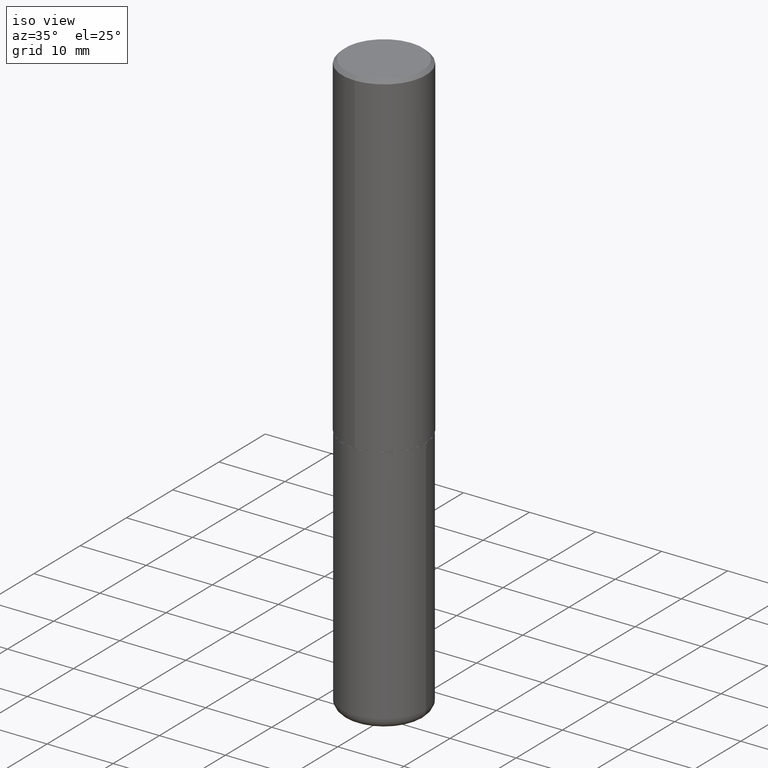
[diagram: clean part render]
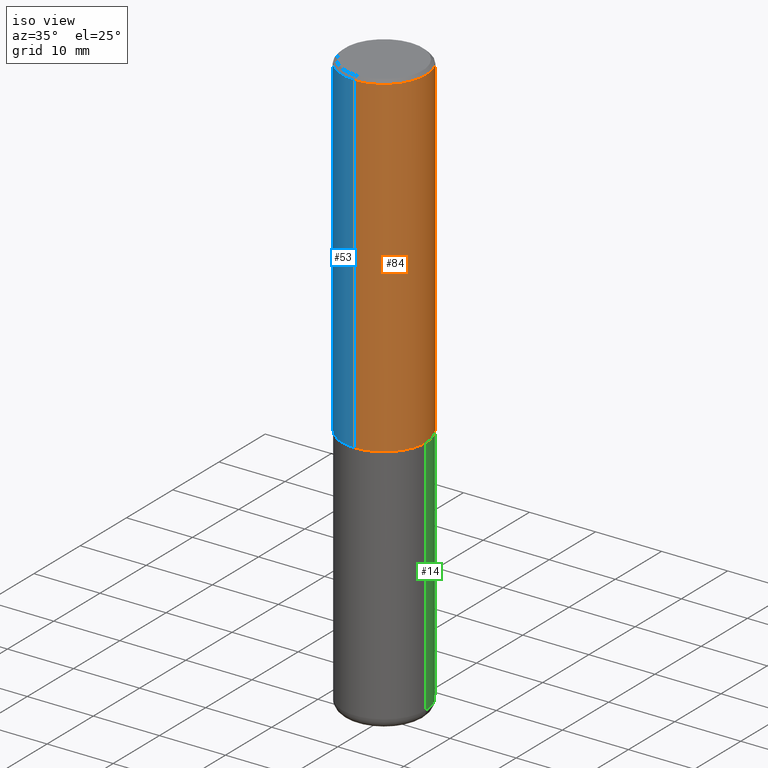
[diagram: same view with three faces highlighted in distinct colors, each labeled with its STEP entity id]
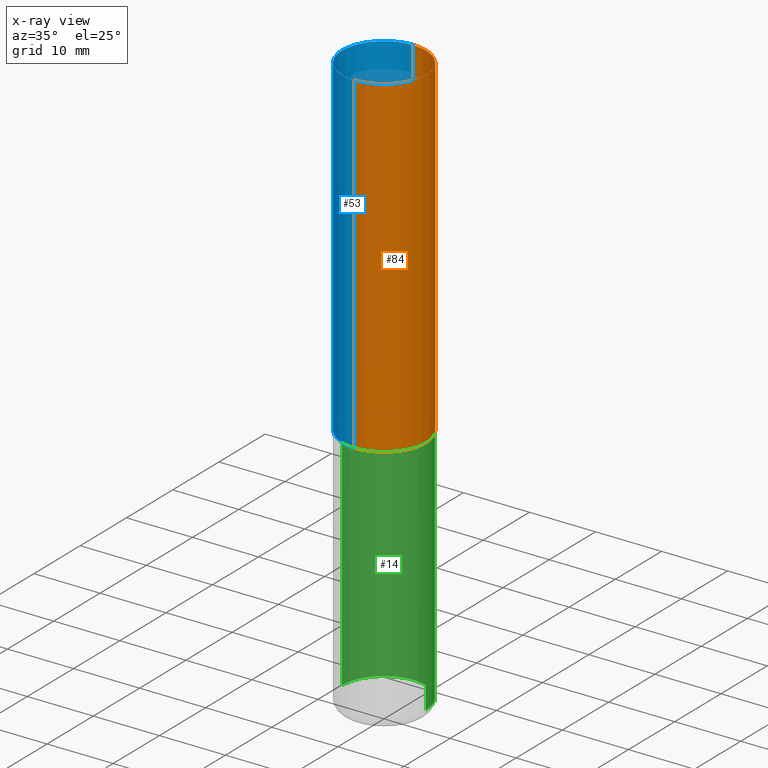
[diagram: x-ray of the same camera — body ghosted, the three highlighted faces saturated]
A machine part, iso view with three faces highlighted in distinct colors.
The next image is the same camera in x-ray (body ghosted, the three faces saturated) — at least one of them is partly hidden behind the body in this view.
Their STEP definitions:

[orange] entity #84 — the highlighted cylindrical surface (partial cylindrical patch) has radius 6.35 mm, axis along (-0, 0, 1).
#7 = VERTEX_POINT ( 'NONE', #170 ) ;
#8 = DIRECTION ( 'NONE',  ( -2.444078991372175563E-29, 3.493471632758652550E-15, 1.000000000000000000 ) ) ;
#12 = AXIS2_PLACEMENT_3D ( 'NONE', #366, #283, #413 ) ;
#26 = DIRECTION ( 'NONE',  ( -6.982962677686266711E-15, -1.000000000000000000, 3.493471632758652550E-15 ) ) ;
#32 = EDGE_CURVE ( 'NONE', #399, #205, #100, .T. ) ;
#73 = CYLINDRICAL_SURFACE ( 'NONE', #296, 0.2500000000000001110 ) ;
#84 = ADVANCED_FACE ( 'NONE', ( #362 ), #73, .T. ) ;
#100 = CIRCLE ( 'NONE', #143, 0.2500000000000000555 ) ;
#106 = ORIENTED_EDGE ( 'NONE', *, *, #249, .F. ) ;
#121 = LINE ( 'NONE', #384, #285 ) ;
#129 = ORIENTED_EDGE ( 'NONE', *, *, #32, .F. ) ;
#137 = DIRECTION ( 'NONE',  ( -2.444078991372175563E-29, 3.493471632758652550E-15, 1.000000000000000000 ) ) ;
#143 = AXIS2_PLACEMENT_3D ( 'NONE', #370, #8, #340 ) ;
#150 = LINE ( 'NONE', #278, #182 ) ;
#170 = CARTESIAN_POINT ( 'NONE',  ( 1.776356839400276103E-15, 0.2499999999999932832, -1.999000000000000776 ) ) ;
#182 = VECTOR ( 'NONE', #409, 39.37007874015748143 ) ;
#196 = ORIENTED_EDGE ( 'NONE', *, *, #221, .T. ) ;
#205 = VERTEX_POINT ( 'NONE', #344 ) ;
#221 = EDGE_CURVE ( 'NONE', #7, #205, #121, .T. ) ;
#249 = EDGE_CURVE ( 'NONE', #334, #399, #150, .T. ) ;
#278 = CARTESIAN_POINT ( 'NONE',  ( -1.745740669421567467E-15, -0.2500000000000001110, 8.733679081896635319E-16 ) ) ;
#283 = DIRECTION ( 'NONE',  ( -2.444078991372175563E-29, 3.493471632758652550E-15, 1.000000000000000000 ) ) ;
#285 = VECTOR ( 'NONE', #379, 39.37007874015748143 ) ;
#296 = AXIS2_PLACEMENT_3D ( 'NONE', #333, #137, #26 ) ;
#305 = CIRCLE ( 'NONE', #12, 0.2500000000000002776 ) ;
#333 = CARTESIAN_POINT ( 'NONE',  ( 0.000000000000000000, 0.000000000000000000, 0.000000000000000000 ) ) ;
#334 = VERTEX_POINT ( 'NONE', #376 ) ;
#339 = EDGE_LOOP ( 'NONE', ( #400, #196, #129, #106 ) ) ;
#340 = DIRECTION ( 'NONE',  ( -6.982962677686265133E-15, -1.000000000000000000, 3.500180241882336472E-15 ) ) ;
#344 = CARTESIAN_POINT ( 'NONE',  ( 1.745740669421567269E-15, 0.2499999999999999722, -0.02000000000000096492 ) ) ;
#362 = FACE_OUTER_BOUND ( 'NONE', #339, .T. ) ;
#366 = CARTESIAN_POINT ( 'NONE',  ( 4.885713903752978284E-29, -6.983449793884546288E-15, -1.998999999999999888 ) ) ;
#370 = CARTESIAN_POINT ( 'NONE',  ( 4.888157982744373443E-31, -6.986943265517335816E-17, -0.02000000000000009062 ) ) ;
#376 = CARTESIAN_POINT ( 'NONE',  ( -1.745740669421519543E-15, -0.2500000000000072720, -1.998999999999999000 ) ) ;
#379 = DIRECTION ( 'NONE',  ( -2.444078991372175563E-29, 3.493471632758652550E-15, 1.000000000000000000 ) ) ;
#384 = CARTESIAN_POINT ( 'NONE',  ( 1.776356839400251254E-15, 0.2500000000000001110, -8.733679081896635319E-16 ) ) ;
#397 = CARTESIAN_POINT ( 'NONE',  ( -1.715124499442882496E-15, -0.2500000000000001110, -0.01999999999999921632 ) ) ;
#399 = VERTEX_POINT ( 'NONE', #397 ) ;
#400 = ORIENTED_EDGE ( 'NONE', *, *, #405, .T. ) ;
#405 = EDGE_CURVE ( 'NONE', #334, #7, #305, .T. ) ;
#409 = DIRECTION ( 'NONE',  ( -2.444078991372175563E-29, 3.493471632758652550E-15, 1.000000000000000000 ) ) ;
#413 = DIRECTION ( 'NONE',  ( -6.982962677686265922E-15, -1.000000000000000000, 3.278217592397112312E-15 ) ) ;

[blue] entity #53 — the highlighted cylindrical surface (partial cylindrical patch) has radius 6.35 mm, axis along (-0, 0, 1).
#5 = AXIS2_PLACEMENT_3D ( 'NONE', #301, #403, #48 ) ;
#7 = VERTEX_POINT ( 'NONE', #170 ) ;
#16 = ORIENTED_EDGE ( 'NONE', *, *, #249, .T. ) ;
#39 = AXIS2_PLACEMENT_3D ( 'NONE', #383, #251, #287 ) ;
#48 = DIRECTION ( 'NONE',  ( -6.982962677686266711E-15, -1.000000000000000000, 3.493471632758652550E-15 ) ) ;
#53 = ADVANCED_FACE ( 'NONE', ( #336 ), #209, .T. ) ;
#120 = DIRECTION ( 'NONE',  ( -2.444078991372175563E-29, 3.493471632758652550E-15, 1.000000000000000000 ) ) ;
#121 = LINE ( 'NONE', #384, #285 ) ;
#122 = EDGE_CURVE ( 'NONE', #205, #399, #222, .T. ) ;
#150 = LINE ( 'NONE', #278, #182 ) ;
#164 = ORIENTED_EDGE ( 'NONE', *, *, #221, .F. ) ;
#169 = CIRCLE ( 'NONE', #219, 0.2500000000000002776 ) ;
#170 = CARTESIAN_POINT ( 'NONE',  ( 1.776356839400276103E-15, 0.2499999999999932832, -1.999000000000000776 ) ) ;
#182 = VECTOR ( 'NONE', #409, 39.37007874015748143 ) ;
#190 = EDGE_LOOP ( 'NONE', ( #164, #292, #16, #235 ) ) ;
#205 = VERTEX_POINT ( 'NONE', #344 ) ;
#209 = CYLINDRICAL_SURFACE ( 'NONE', #5, 0.2500000000000001110 ) ;
#219 = AXIS2_PLACEMENT_3D ( 'NONE', #314, #120, #244 ) ;
#221 = EDGE_CURVE ( 'NONE', #7, #205, #121, .T. ) ;
#222 = CIRCLE ( 'NONE', #39, 0.2500000000000000555 ) ;
#235 = ORIENTED_EDGE ( 'NONE', *, *, #122, .F. ) ;
#244 = DIRECTION ( 'NONE',  ( -6.982962677686265922E-15, -1.000000000000000000, 3.278217592397112312E-15 ) ) ;
#249 = EDGE_CURVE ( 'NONE', #334, #399, #150, .T. ) ;
#251 = DIRECTION ( 'NONE',  ( -2.444078991372175563E-29, 3.493471632758652550E-15, 1.000000000000000000 ) ) ;
#278 = CARTESIAN_POINT ( 'NONE',  ( -1.745740669421567467E-15, -0.2500000000000001110, 8.733679081896635319E-16 ) ) ;
#285 = VECTOR ( 'NONE', #379, 39.37007874015748143 ) ;
#287 = DIRECTION ( 'NONE',  ( -6.982962677686265133E-15, -1.000000000000000000, 3.500180241882336472E-15 ) ) ;
#292 = ORIENTED_EDGE ( 'NONE', *, *, #358, .T. ) ;
#301 = CARTESIAN_POINT ( 'NONE',  ( 0.000000000000000000, 0.000000000000000000, 0.000000000000000000 ) ) ;
#314 = CARTESIAN_POINT ( 'NONE',  ( 4.885713903752978284E-29, -6.983449793884546288E-15, -1.998999999999999888 ) ) ;
#334 = VERTEX_POINT ( 'NONE', #376 ) ;
#336 = FACE_OUTER_BOUND ( 'NONE', #190, .T. ) ;
#344 = CARTESIAN_POINT ( 'NONE',  ( 1.745740669421567269E-15, 0.2499999999999999722, -0.02000000000000096492 ) ) ;
#358 = EDGE_CURVE ( 'NONE', #7, #334, #169, .T. ) ;
#376 = CARTESIAN_POINT ( 'NONE',  ( -1.745740669421519543E-15, -0.2500000000000072720, -1.998999999999999000 ) ) ;
#379 = DIRECTION ( 'NONE',  ( -2.444078991372175563E-29, 3.493471632758652550E-15, 1.000000000000000000 ) ) ;
#383 = CARTESIAN_POINT ( 'NONE',  ( 4.888157982744373443E-31, -6.986943265517335816E-17, -0.02000000000000009062 ) ) ;
#384 = CARTESIAN_POINT ( 'NONE',  ( 1.776356839400251254E-15, 0.2500000000000001110, -8.733679081896635319E-16 ) ) ;
#397 = CARTESIAN_POINT ( 'NONE',  ( -1.715124499442882496E-15, -0.2500000000000001110, -0.01999999999999921632 ) ) ;
#399 = VERTEX_POINT ( 'NONE', #397 ) ;
#403 = DIRECTION ( 'NONE',  ( -2.444078991372175563E-29, 3.493471632758652550E-15, 1.000000000000000000 ) ) ;
#409 = DIRECTION ( 'NONE',  ( -2.444078991372175563E-29, 3.493471632758652550E-15, 1.000000000000000000 ) ) ;

[green] entity #14 — the highlighted cylindrical surface (partial cylindrical patch) has radius 6.35 mm, axis along (-0, 0, 1).
#4 = CARTESIAN_POINT ( 'NONE',  ( -0.2499999999999999722, -1.023433896622016898E-14, -3.439999999999999947 ) ) ;
#11 = ORIENTED_EDGE ( 'NONE', *, *, #396, .T. ) ;
#14 = ADVANCED_FACE ( 'NONE', ( #398 ), #368, .T. ) ;
#24 = DIRECTION ( 'NONE',  ( 1.000000000000000000, -6.982962677686266711E-15, 4.876176775795935793E-29 ) ) ;
#28 = CIRCLE ( 'NONE', #323, 0.2500000000000000000 ) ;
#35 = DIRECTION ( 'NONE',  ( -2.445468806185136597E-29, 3.491481338843145583E-15, 1.000000000000000000 ) ) ;
#47 = CARTESIAN_POINT ( 'NONE',  ( 8.412412693276869938E-29, -1.201069580562042103E-14, -3.439999999999999947 ) ) ;
#52 = CARTESIAN_POINT ( 'NONE',  ( 0.2499999999999999722, -1.375643647504198770E-14, -3.439999999999999947 ) ) ;
#64 = CARTESIAN_POINT ( 'NONE',  ( -0.2500000000000000000, -7.720472402253106025E-15, -2.000000000000000000 ) ) ;
#79 = CARTESIAN_POINT ( 'NONE',  ( 0.000000000000000000, 0.000000000000000000, 0.000000000000000000 ) ) ;
#87 = CIRCLE ( 'NONE', #144, 0.2500000000000000000 ) ;
#89 = ORIENTED_EDGE ( 'NONE', *, *, #309, .T. ) ;
#97 = LINE ( 'NONE', #256, #343 ) ;
#98 = CARTESIAN_POINT ( 'NONE',  ( 4.890937612370273194E-29, -6.982962677686291165E-15, -2.000000000000000000 ) ) ;
#130 = VECTOR ( 'NONE', #302, 39.37007874015748143 ) ;
#141 = CARTESIAN_POINT ( 'NONE',  ( -0.2500000000000000000, 1.776356839400250465E-15, -1.229733772563726445E-29 ) ) ;
#144 = AXIS2_PLACEMENT_3D ( 'NONE', #47, #406, #375 ) ;
#163 = DIRECTION ( 'NONE',  ( 1.000000000000000000, -6.982962677686266711E-15, 0.000000000000000000 ) ) ;
#226 = VERTEX_POINT ( 'NONE', #52 ) ;
#234 = ORIENTED_EDGE ( 'NONE', *, *, #255, .F. ) ;
#255 = EDGE_CURVE ( 'NONE', #226, #267, #97, .T. ) ;
#256 = CARTESIAN_POINT ( 'NONE',  ( 0.2500000000000000000, -1.745740669421566678E-15, 1.219044193948983948E-29 ) ) ;
#261 = EDGE_CURVE ( 'NONE', #267, #393, #28, .T. ) ;
#263 = VERTEX_POINT ( 'NONE', #4 ) ;
#267 = VERTEX_POINT ( 'NONE', #392 ) ;
#302 = DIRECTION ( 'NONE',  ( -2.445468806185136877E-29, 3.491481338843145188E-15, 1.000000000000000000 ) ) ;
#304 = AXIS2_PLACEMENT_3D ( 'NONE', #79, #341, #24 ) ;
#309 = EDGE_CURVE ( 'NONE', #263, #393, #337, .T. ) ;
#323 = AXIS2_PLACEMENT_3D ( 'NONE', #98, #35, #163 ) ;
#337 = LINE ( 'NONE', #141, #130 ) ;
#341 = DIRECTION ( 'NONE',  ( -2.445468806185136597E-29, 3.491481338843145583E-15, 1.000000000000000000 ) ) ;
#343 = VECTOR ( 'NONE', #389, 39.37007874015748143 ) ;
#361 = EDGE_LOOP ( 'NONE', ( #11, #89, #364, #234 ) ) ;
#364 = ORIENTED_EDGE ( 'NONE', *, *, #261, .F. ) ;
#368 = CYLINDRICAL_SURFACE ( 'NONE', #304, 0.2500000000000000000 ) ;
#375 = DIRECTION ( 'NONE',  ( 1.000000000000000000, -6.982962677686270655E-15, 0.000000000000000000 ) ) ;
#389 = DIRECTION ( 'NONE',  ( -2.445468806185136877E-29, 3.491481338843145188E-15, 1.000000000000000000 ) ) ;
#392 = CARTESIAN_POINT ( 'NONE',  ( 0.2500000000000000000, -8.728703347107857054E-15, -2.000000000000000000 ) ) ;
#393 = VERTEX_POINT ( 'NONE', #64 ) ;
#396 = EDGE_CURVE ( 'NONE', #226, #263, #87, .T. ) ;
#398 = FACE_OUTER_BOUND ( 'NONE', #361, .T. ) ;
#406 = DIRECTION ( 'NONE',  ( -2.445468806185136597E-29, 3.491481338843145583E-15, 1.000000000000000000 ) ) ;